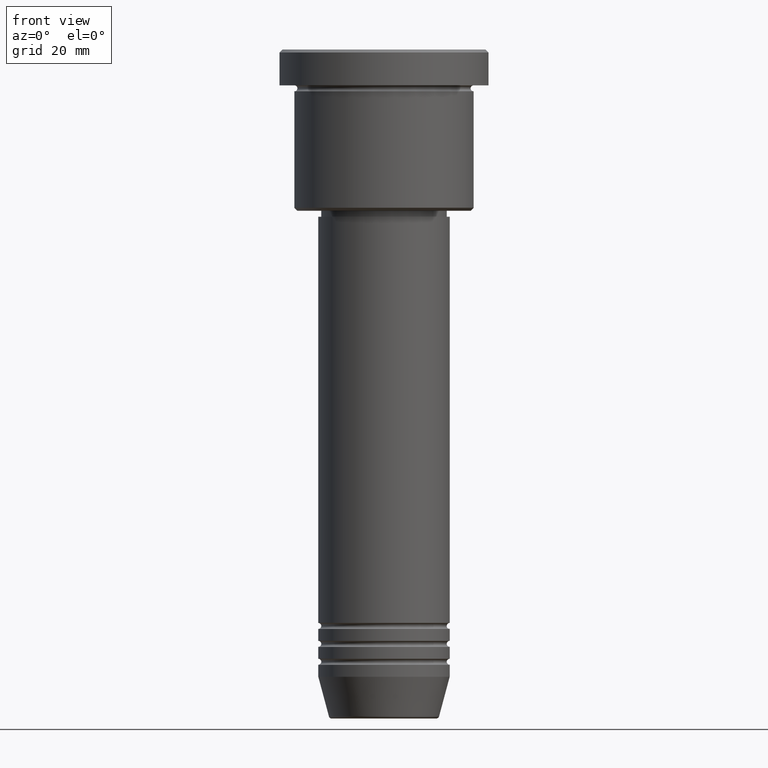
[diagram: clean part render]
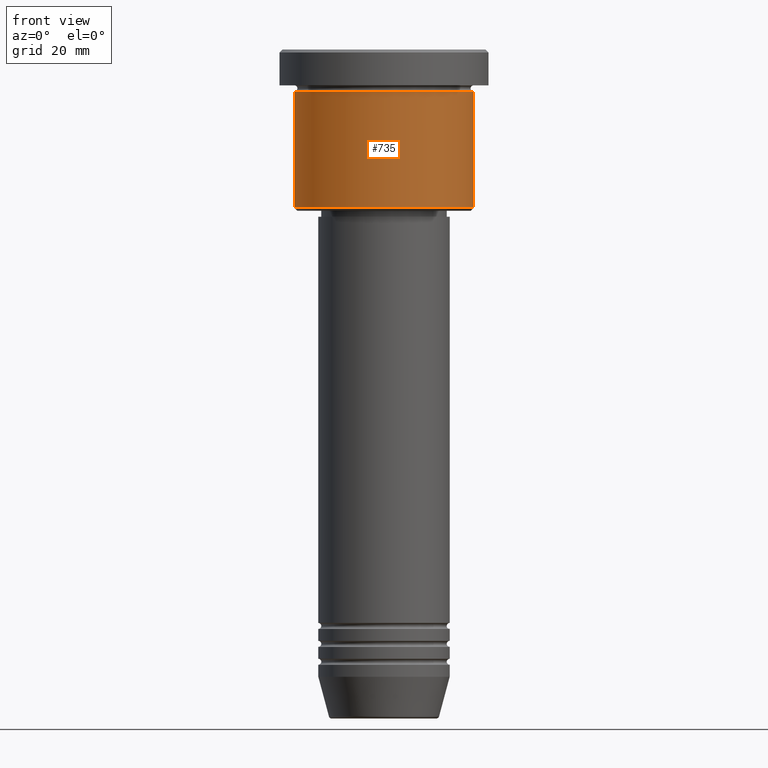
[diagram: same view with one face highlighted and labeled with its STEP entity id]
A machine part, front view. The second image highlights one B-rep face of the part: STEP entity #735.
In plain terms, the highlighted cylindrical surface (partial cylindrical patch) has radius 15 mm, axis along (-0, -0, 1).
Its self-contained STEP definition (entity closure, byte-faithful):
#56 = AXIS2_PLACEMENT_3D ( 'NONE', #217, #741, #950 ) ;
#58 = CIRCLE ( 'NONE', #727, 15.00000000000000000 ) ;
#71 = CARTESIAN_POINT ( 'NONE',  ( -15.00000000000000000, 1.836970198721029589E-15, 0.000000000000000000 ) ) ;
#90 = DIRECTION ( 'NONE',  ( 1.000000000000000000, 0.000000000000000000, 0.000000000000000000 ) ) ;
#166 = DIRECTION ( 'NONE',  ( -0.000000000000000000, -0.000000000000000000, 1.000000000000000000 ) ) ;
#217 = CARTESIAN_POINT ( 'NONE',  ( 0.000000000000000000, 0.000000000000000000, 0.000000000000000000 ) ) ;
#230 = DIRECTION ( 'NONE',  ( -0.000000000000000000, -0.000000000000000000, 1.000000000000000000 ) ) ;
#233 = VERTEX_POINT ( 'NONE', #790 ) ;
#241 = VERTEX_POINT ( 'NONE', #871 ) ;
#262 = DIRECTION ( 'NONE',  ( -0.000000000000000000, -0.000000000000000000, 1.000000000000000000 ) ) ;
#294 = CYLINDRICAL_SURFACE ( 'NONE', #56, 15.00000000000000000 ) ;
#354 = CARTESIAN_POINT ( 'NONE',  ( 15.00000000000000000, 0.000000000000000000, 0.000000000000000000 ) ) ;
#424 = EDGE_CURVE ( 'NONE', #233, #967, #903, .T. ) ;
#460 = AXIS2_PLACEMENT_3D ( 'NONE', #1152, #230, #604 ) ;
#494 = VECTOR ( 'NONE', #166, 1000.000000000000000 ) ;
#525 = CARTESIAN_POINT ( 'NONE',  ( 0.000000000000000000, 0.000000000000000000, -6.999999999999995559 ) ) ;
#535 = CIRCLE ( 'NONE', #460, 15.00000000000000000 ) ;
#536 = VECTOR ( 'NONE', #262, 1000.000000000000000 ) ;
#546 = EDGE_CURVE ( 'NONE', #1017, #233, #535, .T. ) ;
#604 = DIRECTION ( 'NONE',  ( -1.000000000000000000, 0.000000000000000000, 0.000000000000000000 ) ) ;
#702 = ORIENTED_EDGE ( 'NONE', *, *, #424, .T. ) ;
#716 = EDGE_LOOP ( 'NONE', ( #759, #768, #702, #1042 ) ) ;
#727 = AXIS2_PLACEMENT_3D ( 'NONE', #525, #815, #90 ) ;
#733 = LINE ( 'NONE', #71, #536 ) ;
#735 = ADVANCED_FACE ( 'NONE', ( #1111 ), #294, .T. ) ;
#741 = DIRECTION ( 'NONE',  ( -0.000000000000000000, -0.000000000000000000, 1.000000000000000000 ) ) ;
#759 = ORIENTED_EDGE ( 'NONE', *, *, #1036, .F. ) ;
#768 = ORIENTED_EDGE ( 'NONE', *, *, #546, .T. ) ;
#790 = CARTESIAN_POINT ( 'NONE',  ( 15.00000000000000000, 0.000000000000000000, -26.50000000000000000 ) ) ;
#815 = DIRECTION ( 'NONE',  ( -0.000000000000000000, -0.000000000000000000, 1.000000000000000000 ) ) ;
#871 = CARTESIAN_POINT ( 'NONE',  ( -15.00000000000000000, 1.836970198721029589E-15, -6.999999999999995559 ) ) ;
#888 = CARTESIAN_POINT ( 'NONE',  ( 15.00000000000000000, 0.000000000000000000, -6.999999999999995559 ) ) ;
#903 = LINE ( 'NONE', #354, #494 ) ;
#950 = DIRECTION ( 'NONE',  ( 1.000000000000000000, 0.000000000000000000, 0.000000000000000000 ) ) ;
#967 = VERTEX_POINT ( 'NONE', #888 ) ;
#1017 = VERTEX_POINT ( 'NONE', #1056 ) ;
#1036 = EDGE_CURVE ( 'NONE', #1017, #241, #733, .T. ) ;
#1042 = ORIENTED_EDGE ( 'NONE', *, *, #1055, .F. ) ;
#1055 = EDGE_CURVE ( 'NONE', #241, #967, #58, .T. ) ;
#1056 = CARTESIAN_POINT ( 'NONE',  ( -15.00000000000000000, 1.836970198721029589E-15, -26.50000000000000000 ) ) ;
#1111 = FACE_OUTER_BOUND ( 'NONE', #716, .T. ) ;
#1152 = CARTESIAN_POINT ( 'NONE',  ( 0.000000000000000000, 0.000000000000000000, -26.50000000000000000 ) ) ;